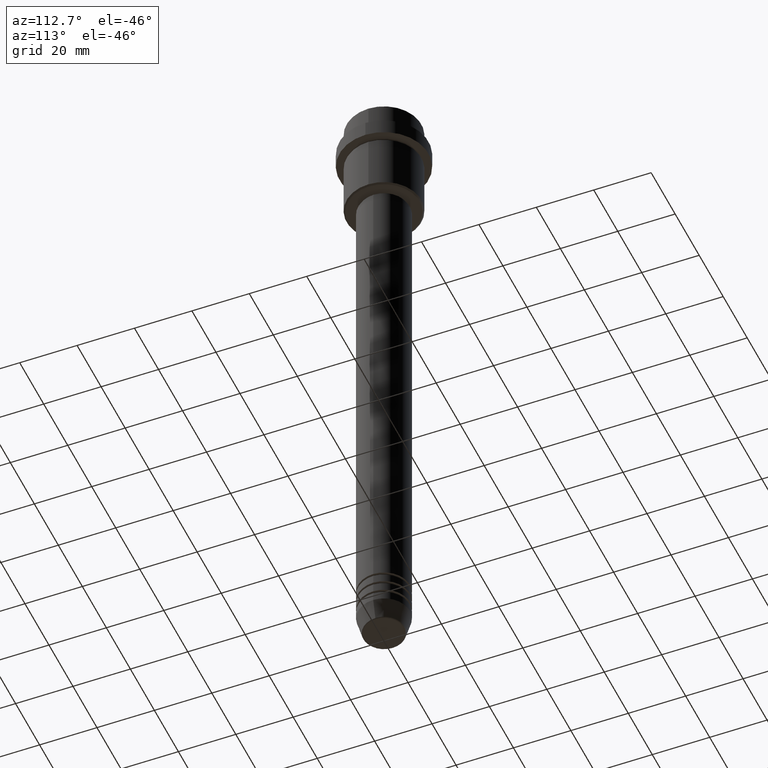
[diagram: clean part render]
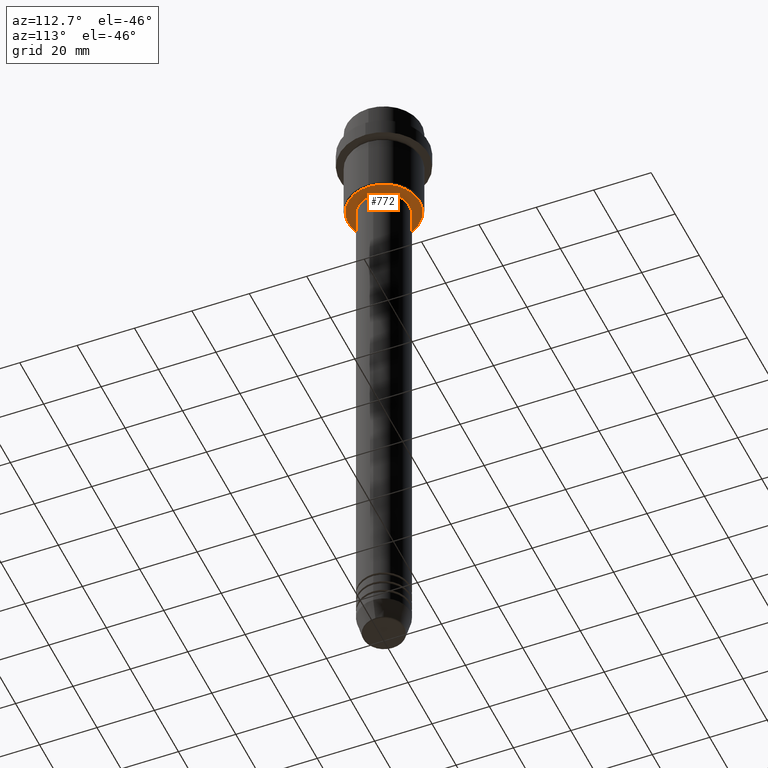
[diagram: same view with one face highlighted and labeled with its STEP entity id]
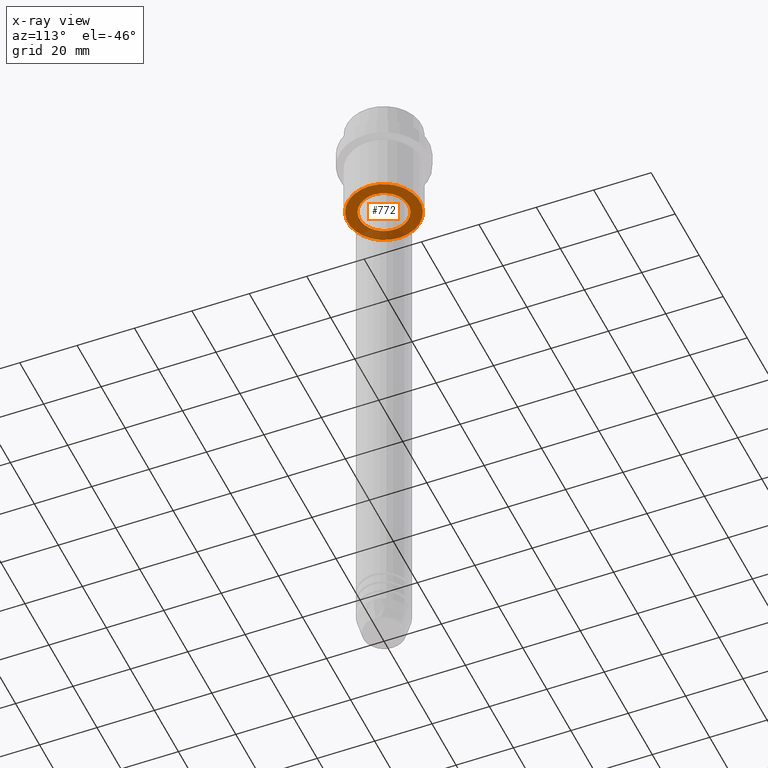
[diagram: x-ray of the same camera — body ghosted, the highlighted face saturated]
A machine part, auxiliary view. The second image highlights one B-rep face of the part: STEP entity #772.
The next image is the same camera in x-ray: the body ghosted, the highlighted face saturated — about 18% of this face is hidden behind the body in this view.
In plain terms, the highlighted planar face has unit normal (0, 0, -1).
Its self-contained STEP definition (entity closure, byte-faithful):
#2 = DIRECTION ( 'NONE',  ( 1.000000000000000000, 0.000000000000000000, 0.000000000000000000 ) ) ;
#39 = EDGE_CURVE ( 'NONE', #1203, #320, #940, .T. ) ;
#40 = CARTESIAN_POINT ( 'NONE',  ( 0.000000000000000000, 0.000000000000000000, -36.00000000000001421 ) ) ;
#98 = CARTESIAN_POINT ( 'NONE',  ( 12.50000000000001066, 0.000000000000000000, -36.00000000000001421 ) ) ;
#121 = AXIS2_PLACEMENT_3D ( 'NONE', #408, #296, #1283 ) ;
#209 = CARTESIAN_POINT ( 'NONE',  ( 0.000000000000000000, 13.00000000000000000, -36.00000000000001421 ) ) ;
#237 = ORIENTED_EDGE ( 'NONE', *, *, #714, .T. ) ;
#246 = DIRECTION ( 'NONE',  ( 0.000000000000000000, 0.000000000000000000, -1.000000000000000000 ) ) ;
#287 = EDGE_CURVE ( 'NONE', #1065, #724, #553, .T. ) ;
#296 = DIRECTION ( 'NONE',  ( -0.000000000000000000, -0.000000000000000000, 1.000000000000000000 ) ) ;
#320 = VERTEX_POINT ( 'NONE', #1247 ) ;
#333 = CARTESIAN_POINT ( 'NONE',  ( -8.499999999999994671, 1.040949779275249745E-15, -36.00000000000001421 ) ) ;
#358 = DIRECTION ( 'NONE',  ( -1.000000000000000000, 0.000000000000000000, -0.000000000000000000 ) ) ;
#390 = CARTESIAN_POINT ( 'NONE',  ( -12.50000000000001066, 1.561424668912876097E-15, -36.00000000000001421 ) ) ;
#398 = CIRCLE ( 'NONE', #993, 12.50000000000001066 ) ;
#408 = CARTESIAN_POINT ( 'NONE',  ( 0.000000000000000000, 0.000000000000000000, -36.00000000000001421 ) ) ;
#451 = DIRECTION ( 'NONE',  ( 0.000000000000000000, 0.000000000000000000, -1.000000000000000000 ) ) ;
#464 = CIRCLE ( 'NONE', #121, 8.499999999999994671 ) ;
#502 = EDGE_LOOP ( 'NONE', ( #1414, #912 ) ) ;
#531 = AXIS2_PLACEMENT_3D ( 'NONE', #209, #1113, #358 ) ;
#537 = FACE_OUTER_BOUND ( 'NONE', #502, .T. ) ;
#553 = CIRCLE ( 'NONE', #1098, 12.50000000000001066 ) ;
#689 = DIRECTION ( 'NONE',  ( -1.000000000000000000, 0.000000000000000000, 0.000000000000000000 ) ) ;
#714 = EDGE_CURVE ( 'NONE', #320, #1203, #464, .T. ) ;
#724 = VERTEX_POINT ( 'NONE', #98 ) ;
#752 = FACE_BOUND ( 'NONE', #1140, .T. ) ;
#759 = PLANE ( 'NONE',  #531 ) ;
#760 = DIRECTION ( 'NONE',  ( -0.000000000000000000, -0.000000000000000000, 1.000000000000000000 ) ) ;
#772 = ADVANCED_FACE ( 'NONE', ( #537, #752 ), #759, .T. ) ;
#840 = ORIENTED_EDGE ( 'NONE', *, *, #39, .T. ) ;
#912 = ORIENTED_EDGE ( 'NONE', *, *, #287, .T. ) ;
#940 = CIRCLE ( 'NONE', #1122, 8.499999999999994671 ) ;
#984 = CARTESIAN_POINT ( 'NONE',  ( 0.000000000000000000, 0.000000000000000000, -36.00000000000001421 ) ) ;
#993 = AXIS2_PLACEMENT_3D ( 'NONE', #984, #451, #689 ) ;
#1065 = VERTEX_POINT ( 'NONE', #390 ) ;
#1098 = AXIS2_PLACEMENT_3D ( 'NONE', #40, #246, #1352 ) ;
#1113 = DIRECTION ( 'NONE',  ( 0.000000000000000000, 0.000000000000000000, -1.000000000000000000 ) ) ;
#1122 = AXIS2_PLACEMENT_3D ( 'NONE', #1308, #760, #2 ) ;
#1140 = EDGE_LOOP ( 'NONE', ( #237, #840 ) ) ;
#1203 = VERTEX_POINT ( 'NONE', #333 ) ;
#1222 = EDGE_CURVE ( 'NONE', #724, #1065, #398, .T. ) ;
#1247 = CARTESIAN_POINT ( 'NONE',  ( 8.499999999999994671, 0.000000000000000000, -36.00000000000001421 ) ) ;
#1283 = DIRECTION ( 'NONE',  ( 1.000000000000000000, 0.000000000000000000, 0.000000000000000000 ) ) ;
#1308 = CARTESIAN_POINT ( 'NONE',  ( 0.000000000000000000, 0.000000000000000000, -36.00000000000001421 ) ) ;
#1352 = DIRECTION ( 'NONE',  ( -1.000000000000000000, 0.000000000000000000, 0.000000000000000000 ) ) ;
#1414 = ORIENTED_EDGE ( 'NONE', *, *, #1222, .T. ) ;